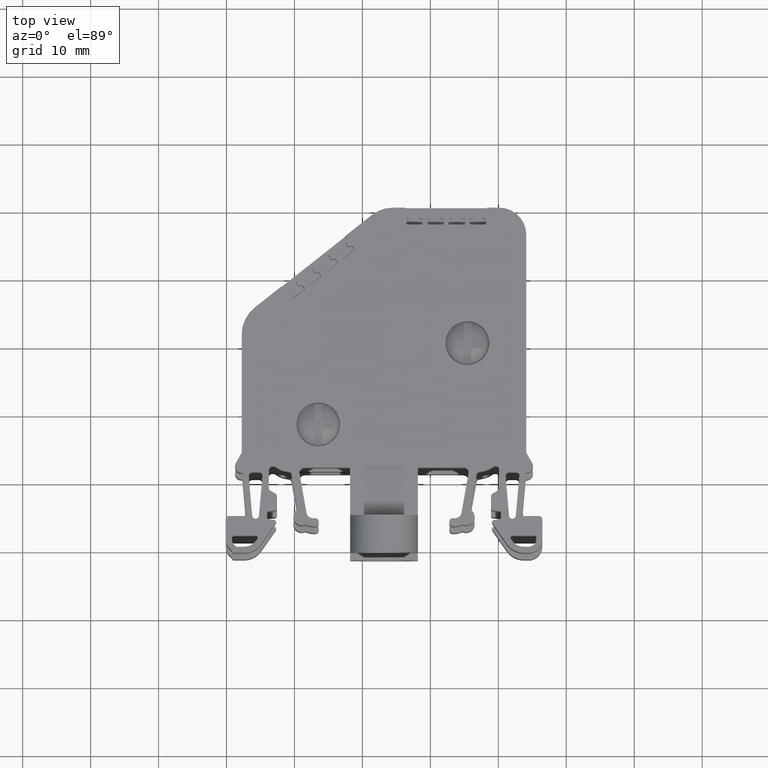
[diagram: clean part render]
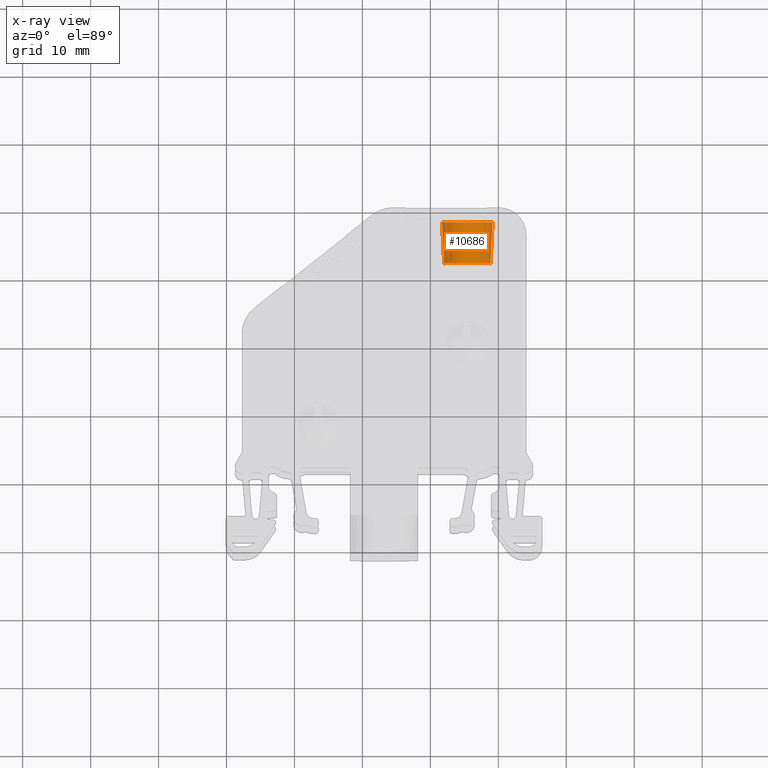
[diagram: x-ray — body ghosted, one internal face saturated and labeled with its STEP entity id]
A machine part, top view, then the same camera in x-ray: the body is ghosted and one INTERNAL B-rep face — a face not visible from any outside direction — is saturated and labeled: STEP entity #10686.
In plain terms, the highlighted conical surface has half-angle 3 deg.
Its self-contained STEP definition (entity closure, byte-faithful):
#1550 = VERTEX_POINT ( 'NONE', #3307 ) ;
#1587 = VERTEX_POINT ( 'NONE', #3374 ) ;
#1594 = VERTEX_POINT ( 'NONE', #3402 ) ;
#1599 = VERTEX_POINT ( 'NONE', #3370 ) ;
#3307 = CARTESIAN_POINT ( 'NONE',  ( -31.16189425341950400, 41.49594552315610900, 10.71981950542175500 ) ) ;
#3370 = CARTESIAN_POINT ( 'NONE',  ( -38.28639942212000600, 47.51594552312040100, 10.71981950542415200 ) ) ;
#3374 = CARTESIAN_POINT ( 'NONE',  ( -30.84639942213814800, 47.51594552315440000, 10.71981950542166500 ) ) ;
#3402 = CARTESIAN_POINT ( 'NONE',  ( -37.97090459083909100, 41.49594552313347900, 10.71981950542404000 ) ) ;
#5101 = CONICAL_SURFACE ( 'NONE', #5103, 3.719999999989800800, 0.05235987755956539300 ) ;
#5103 = AXIS2_PLACEMENT_3D ( 'NONE', #61113, #61071, #61159 ) ;
#7162 = ORIENTED_EDGE ( 'NONE', *, *, #13159, .F. ) ;
#7164 = ORIENTED_EDGE ( 'NONE', *, *, #13411, .F. ) ;
#7165 = ORIENTED_EDGE ( 'NONE', *, *, #13169, .T. ) ;
#7172 = ORIENTED_EDGE ( 'NONE', *, *, #13318, .T. ) ;
#10686 = ADVANCED_FACE ( 'NONE', ( #61157 ), #5101, .T. ) ;
#13159 = EDGE_CURVE ( 'NONE', #1594, #1599, #52829, .T. ) ;
#13169 = EDGE_CURVE ( 'NONE', #1550, #1587, #52918, .T. ) ;
#13318 = EDGE_CURVE ( 'NONE', #1594, #1550, #36131, .T. ) ;
#13411 = EDGE_CURVE ( 'NONE', #1599, #1587, #36241, .T. ) ;
#17199 = VECTOR ( 'NONE', #52925, 1000.000000000000100 ) ;
#17231 = VECTOR ( 'NONE', #52910, 1000.000000000000200 ) ;
#36131 = B_SPLINE_CURVE_WITH_KNOTS ( 'NONE', 3,
 ( #53200, #53205, #53210, #53166, #53171, #53172, #53176, #53177, #53178, #53188, #53183, #53184, #53185, #53186, #53187, #53189, #53266, #53261 ),
 .UNSPECIFIED., .F., .F.,
 ( 4, 2, 2, 2, 2, 2, 2, 2, 4 ),
 ( 0.0000000000000000000, 0.1250000000000000000, 0.2500000000000000000, 0.3750000000000000000, 0.5000000000000000000, 0.6250000000000000000, 0.7500000000000000000, 0.8750000000000000000, 1.000000000000000000 ),
 .UNSPECIFIED. ) ;
#36241 = B_SPLINE_CURVE_WITH_KNOTS ( 'NONE', 3,
 ( #53652, #53648, #53639, #53656, #53681, #53630, #53636, #53682, #53637, #53627, #53676, #53669, #53657, #53642, #53638, #53667, #53666, #53640, #53641, #53658, #53628, #53662, #53659, #53649, #53675, #53629, #53663, #53677, #53670, #53678, #53643, #53650, #53632, #53671, #53651, #53633, #53684, #53687, #53688, #53689, #53718, #53726, #53690, #53724, #53704, #53702, #53736, #53712, #53705, #53714, #53717, #53740, #53685, #53732 ),
 .UNSPECIFIED., .F., .F.,
 ( 4, 1, 1, 1, 2, 2, 2, 2, 2, 1, 2, 2, 1, 1, 2, 2, 2, 1, 1, 1, 2, 2, 2, 2, 2, 1, 2, 2, 1, 1, 2, 2, 4 ),
 ( 0.0000000000000000000, 0.06249999999999152100, 0.09374999999998728800, 0.1093749999999856500, 0.1171874999999850400, 0.1249999999999844600, 0.1562499999999837400, 0.1874999999999830100, 0.2499999999999816300, 0.2812499999999804600, 0.2968749999999799600, 0.3124999999999795200, 0.3437499999999786300, 0.3593749999999783000, 0.3671874999999781300, 0.3749999999999779100, 0.4999999999999796800, 0.5624999999999805700, 0.5937499999999809000, 0.6093749999999810200, 0.6171874999999810200, 0.6249999999999809000, 0.6562499999999826800, 0.6874999999999844600, 0.7499999999999879000, 0.7812499999999897900, 0.7968749999999900100, 0.8124999999999902300, 0.8437499999999916700, 0.8593749999999922300, 0.8671874999999926700, 0.8749999999999932300, 1.000000000000000000 ),
 .UNSPECIFIED. ) ;
#52829 = LINE ( 'NONE', #52858, #17199 ) ;
#52858 = CARTESIAN_POINT ( 'NONE',  ( -38.28639942211964400, 47.51594552311644300, 10.71981950542380500 ) ) ;
#52910 = DIRECTION ( 'NONE',  ( 0.05233595624270204900, 0.9986295347545864900, 1.490831122223538000E-014 ) ) ;
#52913 = CARTESIAN_POINT ( 'NONE',  ( -30.84639942214004200, 47.51594552311628000, 10.71981950542380500 ) ) ;
#52918 = LINE ( 'NONE', #52913, #17231 ) ;
#52925 = DIRECTION ( 'NONE',  ( -0.05233595624265734200, 0.9986295347545888200, 1.490190191610608500E-014 ) ) ;
#53166 = CARTESIAN_POINT ( 'NONE',  ( -37.54120969762913500, 41.49594552313824600, 12.43439292715650700 ) ) ;
#53171 = CARTESIAN_POINT ( 'NONE',  ( -37.28886932031923600, 41.49594552313825300, 12.81204698999158600 ) ) ;
#53172 = CARTESIAN_POINT ( 'NONE',  ( -36.65862690669707300, 41.49594552313821800, 13.44228940361358900 ) ) ;
#53176 = CARTESIAN_POINT ( 'NONE',  ( -36.28097284386191000, 41.49594552313821100, 13.69462978092337800 ) ) ;
#53177 = CARTESIAN_POINT ( 'NONE',  ( -35.45752144732890800, 41.49594552313818200, 14.03571451732220300 ) ) ;
#53178 = CARTESIAN_POINT ( 'NONE',  ( -35.01204810659255200, 41.49594552313817500, 14.12432467413247900 ) ) ;
#53183 = CARTESIAN_POINT ( 'NONE',  ( -33.67527739692913300, 41.49594552313814700, 14.03571451732169000 ) ) ;
#53184 = CARTESIAN_POINT ( 'NONE',  ( -32.85182600039632900, 41.49594552313814000, 13.69462978092238700 ) ) ;
#53185 = CARTESIAN_POINT ( 'NONE',  ( -32.47417193756132300, 41.49594552313814000, 13.44228940361238900 ) ) ;
#53186 = CARTESIAN_POINT ( 'NONE',  ( -31.84392952393949000, 41.49594552313813300, 12.81204698999001400 ) ) ;
#53187 = CARTESIAN_POINT ( 'NONE',  ( -31.59158914662981500, 41.49594552313814000, 12.43439292715479100 ) ) ;
#53188 = CARTESIAN_POINT ( 'NONE',  ( -34.12075073766542500, 41.49594552313815400, 14.12432467413222300 ) ) ;
#53189 = CARTESIAN_POINT ( 'NONE',  ( -31.25050441023123700, 41.49594552313813300, 11.61094153062168600 ) ) ;
#53200 = CARTESIAN_POINT ( 'NONE',  ( -37.97090459083909100, 41.49594552313347900, 10.71981950542404000 ) ) ;
#53205 = CARTESIAN_POINT ( 'NONE',  ( -37.97090459083860700, 41.49594552313828900, 11.16546818988727800 ) ) ;
#53210 = CARTESIAN_POINT ( 'NONE',  ( -37.88229443402821800, 41.49594552313827500, 11.61094153062360600 ) ) ;
#53261 = CARTESIAN_POINT ( 'NONE',  ( -31.16189425341950400, 41.49594552315610900, 10.71981950542175500 ) ) ;
#53266 = CARTESIAN_POINT ( 'NONE',  ( -31.16189425342108200, 41.49594552313814000, 11.16546818988531300 ) ) ;
#53627 = CARTESIAN_POINT ( 'NONE',  ( -37.92737247699862000, 47.51594552318312000, 12.31932623563950800 ) ) ;
#53628 = CARTESIAN_POINT ( 'NONE',  ( -36.33545591296869000, 47.51594552318307100, 13.99652548109501800 ) ) ;
#53629 = CARTESIAN_POINT ( 'NONE',  ( -35.49696739266318700, 47.51594552318304900, 14.35255888219478000 ) ) ;
#53630 = CARTESIAN_POINT ( 'NONE',  ( -38.06695166761769400, 47.51594552318316300, 11.97896832264099700 ) ) ;
#53632 = CARTESIAN_POINT ( 'NONE',  ( -33.25224990691067700, 47.51594552318300700, 14.20008141007128100 ) ) ;
#53633 = CARTESIAN_POINT ( 'NONE',  ( -32.96689268552966500, 47.51594552318299900, 14.08079255611825300 ) ) ;
#53636 = CARTESIAN_POINT ( 'NONE',  ( -38.04658960193935300, 47.51594552318314900, 12.03415039223225800 ) ) ;
#53637 = CARTESIAN_POINT ( 'NONE',  ( -37.97916279526060600, 47.51594552318313400, 12.20557765636817900 ) ) ;
#53638 = CARTESIAN_POINT ( 'NONE',  ( -37.10645349257198700, 47.51594552318310600, 13.44071687243074600 ) ) ;
#53639 = CARTESIAN_POINT ( 'NONE',  ( -38.25340530751876900, 47.51594552318315600, 11.30534718837299700 ) ) ;
#53640 = CARTESIAN_POINT ( 'NONE',  ( -36.70881473841591000, 47.51594552318308500, 13.76159978186369800 ) ) ;
#53641 = CARTESIAN_POINT ( 'NONE',  ( -36.65438407511329900, 47.51594552318309200, 13.79917594239868200 ) ) ;
#53642 = CARTESIAN_POINT ( 'NONE',  ( -37.37760295928284600, 47.51594552318312000, 13.16933644945661900 ) ) ;
#53643 = CARTESIAN_POINT ( 'NONE',  ( -33.39079771437801000, 47.51594552318299900, 14.25012595828613700 ) ) ;
#53648 = CARTESIAN_POINT ( 'NONE',  ( -38.28620189378139600, 47.51594552318316300, 10.95659872999719800 ) ) ;
#53649 = CARTESIAN_POINT ( 'NONE',  ( -35.99420111765118700, 47.51594552318305600, 14.15502350168937100 ) ) ;
#53650 = CARTESIAN_POINT ( 'NONE',  ( -33.30759579600231000, 47.51594552318301400, 14.22050825947441200 ) ) ;
#53651 = CARTESIAN_POINT ( 'NONE',  ( -33.08064126692901400, 47.51594552318299200, 14.13258287577163100 ) ) ;
#53652 = CARTESIAN_POINT ( 'NONE',  ( -38.28639942212000600, 47.51594552312040100, 10.71981950542415200 ) ) ;
#53656 = CARTESIAN_POINT ( 'NONE',  ( -38.15826710948651600, 47.51594552318314900, 11.70098472746620500 ) ) ;
#53657 = CARTESIAN_POINT ( 'NONE',  ( -37.54014981544251800, 47.51594552318312000, 12.96957803933270300 ) ) ;
#53658 = CARTESIAN_POINT ( 'NONE',  ( -36.49729096393545500, 47.51594552318305600, 13.90197653667803300 ) ) ;
#53659 = CARTESIAN_POINT ( 'NONE',  ( -36.05209775113090100, 47.51594552318306300, 14.13038356176902100 ) ) ;
#53662 = CARTESIAN_POINT ( 'NONE',  ( -36.13834995887684400, 47.51594552318307100, 14.09239219565569500 ) ) ;
#53663 = CARTESIAN_POINT ( 'NONE',  ( -35.03846009298281000, 47.51594552318302800, 14.43962225377283200 ) ) ;
#53666 = CARTESIAN_POINT ( 'NONE',  ( -36.81232739648617500, 47.51594552318309200, 13.68603333342961600 ) ) ;
#53667 = CARTESIAN_POINT ( 'NONE',  ( -36.96431400796657100, 47.51594552318309900, 13.56896023763916400 ) ) ;
#53669 = CARTESIAN_POINT ( 'NONE',  ( -37.74995917807186900, 47.51594552318312700, 12.64837066236118300 ) ) ;
#53670 = CARTESIAN_POINT ( 'NONE',  ( -33.98218229518281000, 47.51594552318301400, 14.40734366061240500 ) ) ;
#53671 = CARTESIAN_POINT ( 'NONE',  ( -33.22619856146441500, 47.51594552318301400, 14.19014426277605200 ) ) ;
#53675 = CARTESIAN_POINT ( 'NONE',  ( -35.96313326351253900, 47.51594552318307100, 14.16776155432582100 ) ) ;
#53676 = CARTESIAN_POINT ( 'NONE',  ( -37.81230941759217500, 47.51594552318311300, 12.54142888998031700 ) ) ;
#53677 = CARTESIAN_POINT ( 'NONE',  ( -34.33036908669981100, 47.51594552318302100, 14.43991813124936000 ) ) ;
#53678 = CARTESIAN_POINT ( 'NONE',  ( -33.58621711708912700, 47.51594552318299900, 14.31207589512933600 ) ) ;
#53681 = CARTESIAN_POINT ( 'NONE',  ( -38.09647913195555400, 47.51594552318313400, 11.89599458142649800 ) ) ;
#53682 = CARTESIAN_POINT ( 'NONE',  ( -38.03672417878659900, 47.51594552318315600, 12.06002036715287000 ) ) ;
#53684 = CARTESIAN_POINT ( 'NONE',  ( -32.74479003118890600, 47.51594552318299200, 13.96572949671182200 ) ) ;
#53685 = CARTESIAN_POINT ( 'NONE',  ( -30.84679507826132300, 47.51594552318300700, 11.19444857355058800 ) ) ;
#53687 = CARTESIAN_POINT ( 'NONE',  ( -32.63784826518909900, 47.51594552318299200, 13.90337926136087000 ) ) ;
#53688 = CARTESIAN_POINT ( 'NONE',  ( -32.31664088822690700, 47.51594552318298500, 13.69356989874586400 ) ) ;
#53689 = CARTESIAN_POINT ( 'NONE',  ( -32.11688247804576700, 47.51594552318299900, 13.53102304252892400 ) ) ;
#53690 = CARTESIAN_POINT ( 'NONE',  ( -31.60018559415913600, 47.51594552318299200, 12.96574747981288000 ) ) ;
#53702 = CARTESIAN_POINT ( 'NONE',  ( -31.38424245235910000, 47.51594552318299200, 12.65071114119924200 ) ) ;
#53704 = CARTESIAN_POINT ( 'NONE',  ( -31.48704295441315900, 47.51594552318298500, 12.80780411142230300 ) ) ;
#53705 = CARTESIAN_POINT ( 'NONE',  ( -31.15583541766136800, 47.51594552318299900, 12.20551791371194600 ) ) ;
#53712 = CARTESIAN_POINT ( 'NONE',  ( -31.19382681259508800, 47.51594552318299900, 12.29177016550623100 ) ) ;
#53714 = CARTESIAN_POINT ( 'NONE',  ( -31.13119545468470100, 47.51594552318301400, 12.14762124499356800 ) ) ;
#53717 = CARTESIAN_POINT ( 'NONE',  ( -31.11844502700394700, 47.51594552318300700, 12.11652218821592800 ) ) ;
#53718 = CARTESIAN_POINT ( 'NONE',  ( -31.84550205514836900, 47.51594552318300700, 13.25987357588968200 ) ) ;
#53724 = CARTESIAN_POINT ( 'NONE',  ( -31.52461914571226500, 47.51594552318299900, 12.86223482173071600 ) ) ;
#53726 = CARTESIAN_POINT ( 'NONE',  ( -31.71725868995915200, 47.51594552318297800, 13.11773409130218200 ) ) ;
#53732 = CARTESIAN_POINT ( 'NONE',  ( -30.84639942213814800, 47.51594552315440000, 10.71981950542166500 ) ) ;
#53736 = CARTESIAN_POINT ( 'NONE',  ( -31.28969355405478200, 47.51594552318299200, 12.48887616070986800 ) ) ;
#53740 = CARTESIAN_POINT ( 'NONE',  ( -30.93385758494161300, 47.51594552318300700, 11.65088601340732800 ) ) ;
#61071 = DIRECTION ( 'NONE',  ( 2.238352872234272200E-014, 1.000000000000000000, 1.492235248156186000E-014 ) ) ;
#61113 = CARTESIAN_POINT ( 'NONE',  ( -34.56639942212984100, 47.51594552311635800, 10.71981950542380500 ) ) ;
#61157 = FACE_OUTER_BOUND ( 'NONE', #68563, .T. ) ;
#61159 = DIRECTION ( 'NONE',  ( -1.000000000000000000, 2.238352872234275000E-014, 0.0000000000000000000 ) ) ;
#68563 = EDGE_LOOP ( 'NONE', ( #7172, #7165, #7164, #7162 ) ) ;